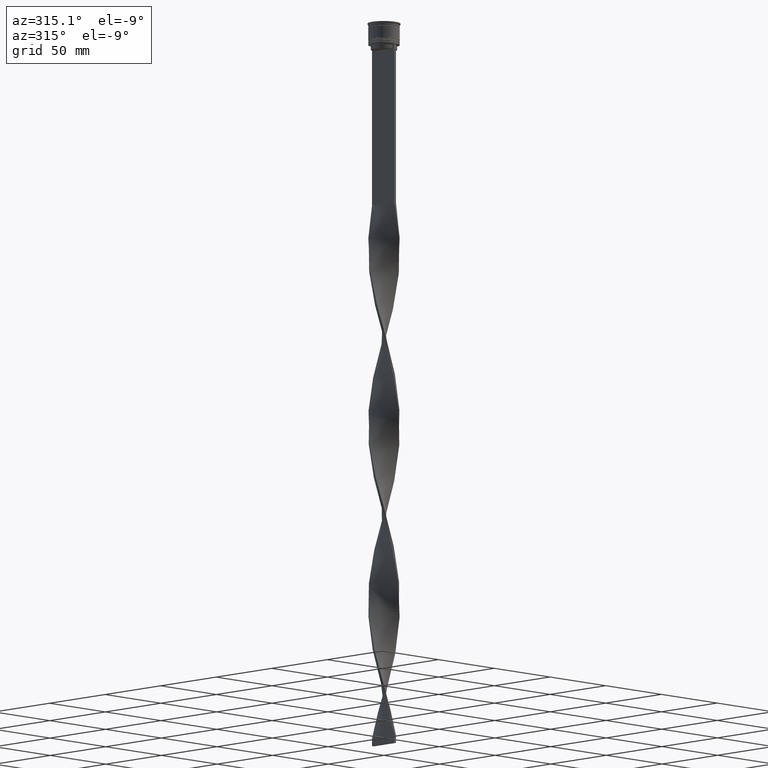
[diagram: clean part render]
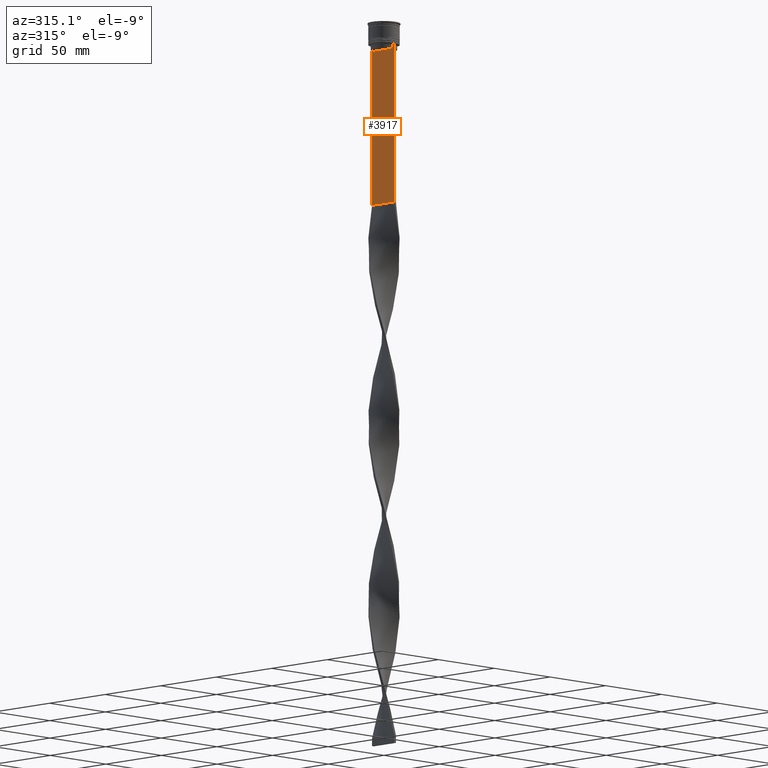
[diagram: same view with one face highlighted and labeled with its STEP entity id]
A machine part, auxiliary view. The second image highlights one B-rep face of the part: STEP entity #3917.
In plain terms, the highlighted planar face has unit normal (-1, 0, 0).
Its self-contained STEP definition (entity closure, byte-faithful):
#15 = CARTESIAN_POINT ( 'NONE',  ( -0.7499999999999997780, -10.00000000000000533, -14.00000000000000178 ) ) ;
#134 = CARTESIAN_POINT ( 'NONE',  ( -0.7499999999999997780, 8.366450860430608927, -14.50000000000000000 ) ) ;
#142 = VECTOR ( 'NONE', #3594, 1000.000000000000000 ) ;
#208 = ORIENTED_EDGE ( 'NONE', *, *, #1888, .F. ) ;
#249 = ORIENTED_EDGE ( 'NONE', *, *, #3455, .F. ) ;
#255 = VECTOR ( 'NONE', #592, 1000.000000000000000 ) ;
#270 = PLANE ( 'NONE',  #1153 ) ;
#281 = EDGE_CURVE ( 'NONE', #797, #1932, #4133, .T. ) ;
#296 = CARTESIAN_POINT ( 'NONE',  ( -0.7499999999999997780, 8.868342573446296839, -14.00000000000000178 ) ) ;
#335 = EDGE_CURVE ( 'NONE', #1849, #3696, #1064, .T. ) ;
#343 = DIRECTION ( 'NONE',  ( 0.000000000000000000, 0.000000000000000000, -1.000000000000000000 ) ) ;
#392 = CARTESIAN_POINT ( 'NONE',  ( -0.7499999999999997780, -8.868342573446296839, -14.00000000000000178 ) ) ;
#464 = DIRECTION ( 'NONE',  ( 0.000000000000000000, 0.000000000000000000, -1.000000000000000000 ) ) ;
#484 = CARTESIAN_POINT ( 'NONE',  ( -0.7499999999999997780, -8.701063080777123204, -14.16668447713511547 ) ) ;
#527 = CARTESIAN_POINT ( 'NONE',  ( -0.7499999999999997780, 8.366450860430608927, -17.00000000000000000 ) ) ;
#549 = VERTEX_POINT ( 'NONE', #527 ) ;
#592 = DIRECTION ( 'NONE',  ( -0.000000000000000000, -0.000000000000000000, 1.000000000000000000 ) ) ;
#658 = LINE ( 'NONE', #2380, #1511 ) ;
#665 = EDGE_CURVE ( 'NONE', #1411, #2772, #1312, .T. ) ;
#680 = DIRECTION ( 'NONE',  ( 0.000000000000000000, 1.000000000000000000, 0.000000000000000000 ) ) ;
#758 = VECTOR ( 'NONE', #1044, 1000.000000000000000 ) ;
#797 = VERTEX_POINT ( 'NONE', #1125 ) ;
#865 = CARTESIAN_POINT ( 'NONE',  ( -0.7499999999999997780, -10.00000000000000533, -14.00000000000000178 ) ) ;
#904 = VERTEX_POINT ( 'NONE', #3289 ) ;
#941 = VECTOR ( 'NONE', #3721, 1000.000000000000000 ) ;
#961 = CARTESIAN_POINT ( 'NONE',  ( -0.7499999999999997780, -8.366450860430608927, -17.00000000000000000 ) ) ;
#973 = DIRECTION ( 'NONE',  ( 0.000000000000000000, 0.000000000000000000, 1.000000000000000000 ) ) ;
#1001 = ORIENTED_EDGE ( 'NONE', *, *, #3613, .F. ) ;
#1044 = DIRECTION ( 'NONE',  ( 0.000000000000000000, -1.000000000000000000, 0.000000000000000000 ) ) ;
#1064 = LINE ( 'NONE', #2427, #758 ) ;
#1125 = CARTESIAN_POINT ( 'NONE',  ( -0.7499999999999997780, 9.999999999999998224, -14.00000000000000178 ) ) ;
#1153 = AXIS2_PLACEMENT_3D ( 'NONE', #2042, #3006, #973 ) ;
#1226 = DIRECTION ( 'NONE',  ( 0.000000000000000000, -1.000000000000000000, 0.000000000000000000 ) ) ;
#1245 = ORIENTED_EDGE ( 'NONE', *, *, #2520, .F. ) ;
#1308 = CARTESIAN_POINT ( 'NONE',  ( -0.7499999999999997780, 9.999999999999998224, 6.056171120131581098 ) ) ;
#1312 = LINE ( 'NONE', #3661, #255 ) ;
#1411 = VERTEX_POINT ( 'NONE', #961 ) ;
#1446 = CARTESIAN_POINT ( 'NONE',  ( -0.7499999999999997780, -8.366450860430608927, -14.50000000000000000 ) ) ;
#1511 = VECTOR ( 'NONE', #680, 1000.000000000000000 ) ;
#1565 = CARTESIAN_POINT ( 'NONE',  ( -0.7499999999999997780, -8.366450860430608927, -14.50000000000000000 ) ) ;
#1594 = CARTESIAN_POINT ( 'NONE',  ( -0.7499999999999997780, 8.533766897779926808, -14.33335221373273782 ) ) ;
#1650 = ORIENTED_EDGE ( 'NONE', *, *, #1860, .F. ) ;
#1658 = ORIENTED_EDGE ( 'NONE', *, *, #2494, .F. ) ;
#1713 = DIRECTION ( 'NONE',  ( 0.000000000000000000, 0.000000000000000000, -1.000000000000000000 ) ) ;
#1834 = CARTESIAN_POINT ( 'NONE',  ( -0.7499999999999997780, 8.868342573446296839, -14.00000000000000178 ) ) ;
#1849 = VERTEX_POINT ( 'NONE', #2187 ) ;
#1860 = EDGE_CURVE ( 'NONE', #2772, #2742, #4027, .T. ) ;
#1873 = LINE ( 'NONE', #2906, #3111 ) ;
#1876 = CARTESIAN_POINT ( 'NONE',  ( -0.7499999999999997780, -10.00000000000000533, 6.056171120131581098 ) ) ;
#1886 = VERTEX_POINT ( 'NONE', #3239 ) ;
#1888 = EDGE_CURVE ( 'NONE', #549, #1411, #1873, .T. ) ;
#1902 = VECTOR ( 'NONE', #2045, 1000.000000000000000 ) ;
#1932 = VERTEX_POINT ( 'NONE', #2516 ) ;
#1972 = ORIENTED_EDGE ( 'NONE', *, *, #4361, .F. ) ;
#2042 = CARTESIAN_POINT ( 'NONE',  ( -0.7499999999999997780, -10.00000000000000533, 6.056171120131581098 ) ) ;
#2045 = DIRECTION ( 'NONE',  ( 0.000000000000000000, -1.000000000000000000, 0.000000000000000000 ) ) ;
#2048 = ORIENTED_EDGE ( 'NONE', *, *, #2526, .F. ) ;
#2066 = CARTESIAN_POINT ( 'NONE',  ( -0.7499999999999997780, -10.00000000000000533, -14.00000000000000178 ) ) ;
#2187 = CARTESIAN_POINT ( 'NONE',  ( -0.7499999999999997780, -9.871550030263740894, -14.00000000000000178 ) ) ;
#2285 = B_SPLINE_CURVE_WITH_KNOTS ( 'NONE', 3,
 ( #1834, #4348, #1594, #134 ),
 .UNSPECIFIED., .F., .F.,
 ( 4, 4 ),
 ( 0.01512225952876174867, 0.01583070519299695222 ),
 .UNSPECIFIED. ) ;
#2314 = CARTESIAN_POINT ( 'NONE',  ( -0.7499999999999998890, -10.00000000000000533, -116.0000000000000000 ) ) ;
#2380 = CARTESIAN_POINT ( 'NONE',  ( -0.7499999999999997780, -10.00000000000000533, -116.0000000000000000 ) ) ;
#2427 = CARTESIAN_POINT ( 'NONE',  ( -0.7499999999999997780, -10.00000000000000533, -14.00000000000000178 ) ) ;
#2494 = EDGE_CURVE ( 'NONE', #1932, #4096, #3009, .T. ) ;
#2516 = CARTESIAN_POINT ( 'NONE',  ( -0.7499999999999997780, 9.871550030263740894, -14.00000000000000178 ) ) ;
#2520 = EDGE_CURVE ( 'NONE', #2541, #1886, #658, .T. ) ;
#2526 = EDGE_CURVE ( 'NONE', #904, #549, #2763, .T. ) ;
#2541 = VERTEX_POINT ( 'NONE', #2314 ) ;
#2650 = VECTOR ( 'NONE', #1713, 1000.000000000000000 ) ;
#2742 = VERTEX_POINT ( 'NONE', #392 ) ;
#2763 = LINE ( 'NONE', #4132, #2650 ) ;
#2772 = VERTEX_POINT ( 'NONE', #1446 ) ;
#2906 = CARTESIAN_POINT ( 'NONE',  ( -0.7499999999999997780, 8.400000000000003908, -17.00000000000000000 ) ) ;
#2926 = CARTESIAN_POINT ( 'NONE',  ( -0.7499999999999997780, -8.868342573446296839, -14.00000000000000178 ) ) ;
#3006 = DIRECTION ( 'NONE',  ( -1.000000000000000000, 0.000000000000000000, 0.000000000000000000 ) ) ;
#3009 = LINE ( 'NONE', #2066, #941 ) ;
#3111 = VECTOR ( 'NONE', #1226, 1000.000000000000000 ) ;
#3230 = EDGE_LOOP ( 'NONE', ( #1972, #1658, #4248, #3754, #1245, #249, #4226, #1001, #1650, #3913, #208, #2048 ) ) ;
#3239 = CARTESIAN_POINT ( 'NONE',  ( -0.7499999999999997780, 9.999999999999998224, -116.0000000000000000 ) ) ;
#3289 = CARTESIAN_POINT ( 'NONE',  ( -0.7499999999999997780, 8.366450860430608927, -14.50000000000000000 ) ) ;
#3407 = LINE ( 'NONE', #1308, #3940 ) ;
#3455 = EDGE_CURVE ( 'NONE', #3696, #2541, #3847, .T. ) ;
#3551 = CARTESIAN_POINT ( 'NONE',  ( -0.7499999999999997780, -8.533766903463440912, -14.33335220807192201 ) ) ;
#3594 = DIRECTION ( 'NONE',  ( 0.000000000000000000, -1.000000000000000000, 0.000000000000000000 ) ) ;
#3613 = EDGE_CURVE ( 'NONE', #2742, #1849, #3930, .T. ) ;
#3661 = CARTESIAN_POINT ( 'NONE',  ( -0.7499999999999997780, -8.366450860430608927, 0.000000000000000000 ) ) ;
#3696 = VERTEX_POINT ( 'NONE', #15 ) ;
#3719 = FACE_OUTER_BOUND ( 'NONE', #3230, .T. ) ;
#3721 = DIRECTION ( 'NONE',  ( 0.000000000000000000, -1.000000000000000000, 0.000000000000000000 ) ) ;
#3724 = CARTESIAN_POINT ( 'NONE',  ( -0.7499999999999997780, -10.00000000000000533, -14.00000000000000178 ) ) ;
#3754 = ORIENTED_EDGE ( 'NONE', *, *, #3951, .T. ) ;
#3847 = LINE ( 'NONE', #1876, #4080 ) ;
#3913 = ORIENTED_EDGE ( 'NONE', *, *, #665, .F. ) ;
#3917 = ADVANCED_FACE ( 'NONE', ( #3719 ), #270, .T. ) ;
#3930 = LINE ( 'NONE', #865, #142 ) ;
#3940 = VECTOR ( 'NONE', #343, 1000.000000000000000 ) ;
#3951 = EDGE_CURVE ( 'NONE', #797, #1886, #3407, .T. ) ;
#4027 = B_SPLINE_CURVE_WITH_KNOTS ( 'NONE', 3,
 ( #1565, #3551, #484, #2926 ),
 .UNSPECIFIED., .F., .F.,
 ( 4, 4 ),
 ( 0.03866293624047253963, 0.03937282246709321309 ),
 .UNSPECIFIED. ) ;
#4080 = VECTOR ( 'NONE', #464, 1000.000000000000000 ) ;
#4096 = VERTEX_POINT ( 'NONE', #296 ) ;
#4132 = CARTESIAN_POINT ( 'NONE',  ( -0.7499999999999997780, 8.366450860430608927, 0.000000000000000000 ) ) ;
#4133 = LINE ( 'NONE', #3724, #1902 ) ;
#4226 = ORIENTED_EDGE ( 'NONE', *, *, #335, .F. ) ;
#4248 = ORIENTED_EDGE ( 'NONE', *, *, #281, .F. ) ;
#4348 = CARTESIAN_POINT ( 'NONE',  ( -0.7499999999999997780, 8.701063075415252257, -14.16668448247791723 ) ) ;
#4361 = EDGE_CURVE ( 'NONE', #4096, #904, #2285, .T. ) ;